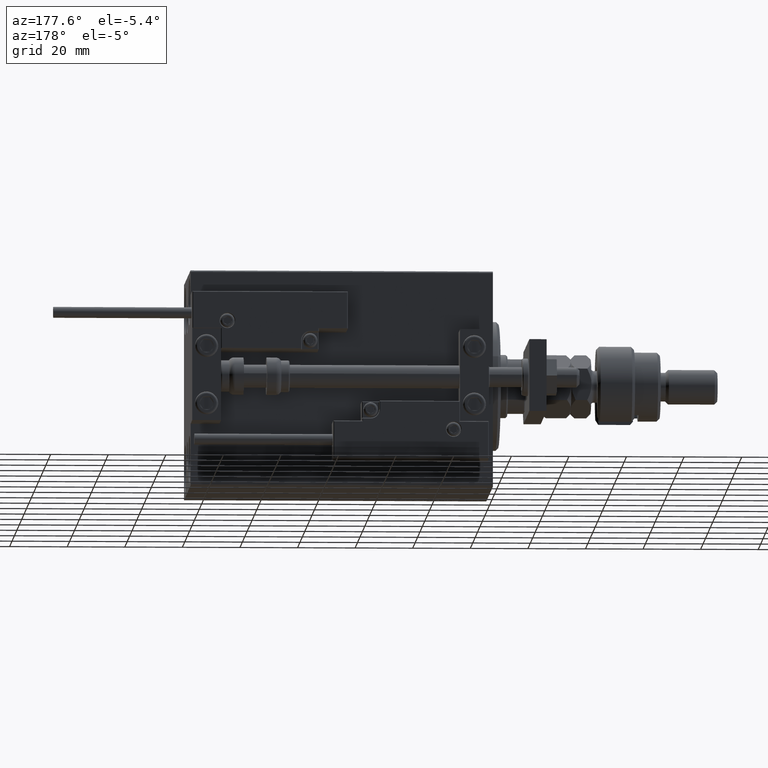
[diagram: clean part render]
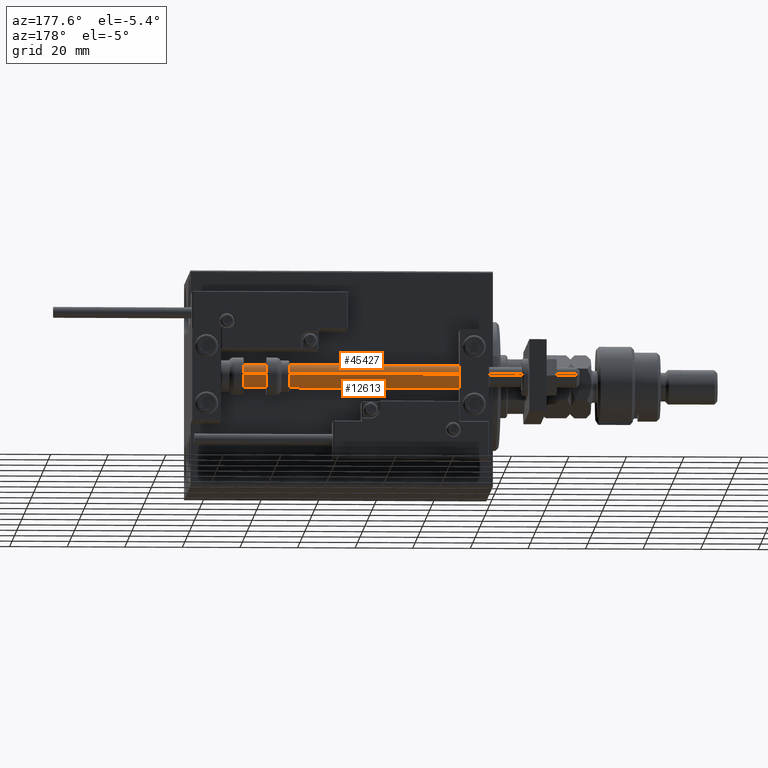
[diagram: same view with one multi-face feature highlighted, each face labeled with its STEP entity id]
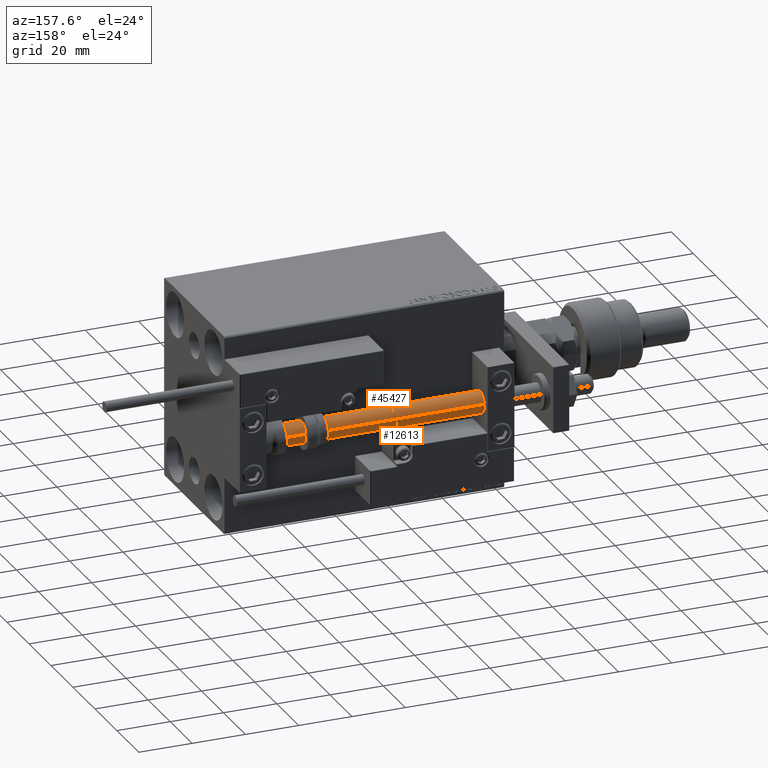
[diagram: same view with one multi-face feature highlighted, each face labeled with its STEP entity id]
A machine part, auxiliary view. The highlighted faces form ONE feature: a constant-radius fillet chain: 2 tangent blend faces with common blend radius 4 mm. The faces share edges in the B-rep.
A second angle (auxiliary view) of the same feature is appended — it is thin or edge-on in the first view.
Their STEP definitions:
[1] entity #45427 (Cylinder):
#1222 = CARTESIAN_POINT ( 'NONE',  ( 0.000000000000000000, 0.000000000000000000, 105.0000000000000000 ) ) ;
#1766 = VERTEX_POINT ( 'NONE', #25635 ) ;
#4138 = ORIENTED_EDGE ( 'NONE', *, *, #35335, .F. ) ;
#5382 = EDGE_CURVE ( 'NONE', #49031, #28472, #25627, .T. ) ;
#5959 = CARTESIAN_POINT ( 'NONE',  ( 4.000000000000000000, 4.898587196589412829E-16, 105.0000000000000000 ) ) ;
#6175 = CARTESIAN_POINT ( 'NONE',  ( 4.000000000000000000, 4.898587196589412829E-16, 105.0000000000000000 ) ) ;
#6942 = DIRECTION ( 'NONE',  ( 1.000000000000000000, 0.000000000000000000, 0.000000000000000000 ) ) ;
#8678 = DIRECTION ( 'NONE',  ( -1.000000000000000000, 0.000000000000000000, 0.000000000000000000 ) ) ;
#12653 = EDGE_CURVE ( 'NONE', #1766, #34781, #20235, .T. ) ;
#12928 = FACE_OUTER_BOUND ( 'NONE', #34916, .T. ) ;
#13975 = DIRECTION ( 'NONE',  ( -0.000000000000000000, -0.000000000000000000, -1.000000000000000000 ) ) ;
#14793 = ORIENTED_EDGE ( 'NONE', *, *, #12653, .F. ) ;
#17434 = ORIENTED_EDGE ( 'NONE', *, *, #38388, .T. ) ;
#17476 = DIRECTION ( 'NONE',  ( 0.000000000000000000, 0.000000000000000000, 1.000000000000000000 ) ) ;
#20235 = LINE ( 'NONE', #25264, #41514 ) ;
#21694 = ORIENTED_EDGE ( 'NONE', *, *, #5382, .T. ) ;
#23599 = AXIS2_PLACEMENT_3D ( 'NONE', #41426, #13975, #8678 ) ;
#24288 = AXIS2_PLACEMENT_3D ( 'NONE', #52273, #27176, #6942 ) ;
#25002 = AXIS2_PLACEMENT_3D ( 'NONE', #1222, #17476, #29719 ) ;
#25172 = CYLINDRICAL_SURFACE ( 'NONE', #23599, 4.000000000000000000 ) ;
#25264 = CARTESIAN_POINT ( 'NONE',  ( -4.000000000000000000, 0.000000000000000000, 105.0000000000000000 ) ) ;
#25627 = LINE ( 'NONE', #6175, #42086 ) ;
#25635 = CARTESIAN_POINT ( 'NONE',  ( -4.000000000000000000, 0.000000000000000000, 105.0000000000000000 ) ) ;
#27176 = DIRECTION ( 'NONE',  ( -0.000000000000000000, -0.000000000000000000, 1.000000000000000000 ) ) ;
#28472 = VERTEX_POINT ( 'NONE', #30124 ) ;
#29719 = DIRECTION ( 'NONE',  ( 1.000000000000000000, 0.000000000000000000, 0.000000000000000000 ) ) ;
#30124 = CARTESIAN_POINT ( 'NONE',  ( 4.000000000000000000, 4.898587196589412829E-16, 2.000000000000029310 ) ) ;
#34781 = VERTEX_POINT ( 'NONE', #45291 ) ;
#34916 = EDGE_LOOP ( 'NONE', ( #4138, #21694, #17434, #14793 ) ) ;
#35335 = EDGE_CURVE ( 'NONE', #49031, #1766, #48004, .T. ) ;
#38388 = EDGE_CURVE ( 'NONE', #28472, #34781, #43835, .T. ) ;
#41426 = CARTESIAN_POINT ( 'NONE',  ( 0.000000000000000000, 0.000000000000000000, 105.0000000000000000 ) ) ;
#41514 = VECTOR ( 'NONE', #41518, 1000.000000000000000 ) ;
#41518 = DIRECTION ( 'NONE',  ( -0.000000000000000000, -0.000000000000000000, -1.000000000000000000 ) ) ;
#42086 = VECTOR ( 'NONE', #50166, 1000.000000000000000 ) ;
#43835 = CIRCLE ( 'NONE', #24288, 4.000000000000000000 ) ;
#45291 = CARTESIAN_POINT ( 'NONE',  ( -4.000000000000000000, 0.000000000000000000, 2.000000000000029310 ) ) ;
#45427 = ADVANCED_FACE ( 'NONE', ( #12928 ), #25172, .T. ) ;
#48004 = CIRCLE ( 'NONE', #25002, 4.000000000000000000 ) ;
#49031 = VERTEX_POINT ( 'NONE', #5959 ) ;
#50166 = DIRECTION ( 'NONE',  ( -0.000000000000000000, -0.000000000000000000, -1.000000000000000000 ) ) ;
#52273 = CARTESIAN_POINT ( 'NONE',  ( 0.000000000000000000, 0.000000000000000000, 2.000000000000029310 ) ) ;
[2] entity #12613 (Cylinder):
#1021 = DIRECTION ( 'NONE',  ( -0.000000000000000000, -0.000000000000000000, -1.000000000000000000 ) ) ;
#1766 = VERTEX_POINT ( 'NONE', #25635 ) ;
#3751 = CIRCLE ( 'NONE', #40327, 4.000000000000000000 ) ;
#4763 = CARTESIAN_POINT ( 'NONE',  ( 0.000000000000000000, 0.000000000000000000, 105.0000000000000000 ) ) ;
#4774 = DIRECTION ( 'NONE',  ( 0.000000000000000000, 0.000000000000000000, 1.000000000000000000 ) ) ;
#5148 = AXIS2_PLACEMENT_3D ( 'NONE', #31615, #34557, #42823 ) ;
#5382 = EDGE_CURVE ( 'NONE', #49031, #28472, #25627, .T. ) ;
#5959 = CARTESIAN_POINT ( 'NONE',  ( 4.000000000000000000, 4.898587196589412829E-16, 105.0000000000000000 ) ) ;
#6175 = CARTESIAN_POINT ( 'NONE',  ( 4.000000000000000000, 4.898587196589412829E-16, 105.0000000000000000 ) ) ;
#9814 = ORIENTED_EDGE ( 'NONE', *, *, #5382, .F. ) ;
#12613 = ADVANCED_FACE ( 'NONE', ( #12763 ), #41261, .T. ) ;
#12653 = EDGE_CURVE ( 'NONE', #1766, #34781, #20235, .T. ) ;
#12763 = FACE_OUTER_BOUND ( 'NONE', #35863, .T. ) ;
#15250 = ORIENTED_EDGE ( 'NONE', *, *, #23796, .T. ) ;
#20235 = LINE ( 'NONE', #25264, #41514 ) ;
#20869 = ORIENTED_EDGE ( 'NONE', *, *, #12653, .T. ) ;
#21021 = DIRECTION ( 'NONE',  ( -1.000000000000000000, 0.000000000000000000, 0.000000000000000000 ) ) ;
#21030 = CARTESIAN_POINT ( 'NONE',  ( 0.000000000000000000, 0.000000000000000000, 105.0000000000000000 ) ) ;
#23796 = EDGE_CURVE ( 'NONE', #34781, #28472, #45978, .T. ) ;
#25263 = ORIENTED_EDGE ( 'NONE', *, *, #34992, .F. ) ;
#25264 = CARTESIAN_POINT ( 'NONE',  ( -4.000000000000000000, 0.000000000000000000, 105.0000000000000000 ) ) ;
#25627 = LINE ( 'NONE', #6175, #42086 ) ;
#25635 = CARTESIAN_POINT ( 'NONE',  ( -4.000000000000000000, 0.000000000000000000, 105.0000000000000000 ) ) ;
#28472 = VERTEX_POINT ( 'NONE', #30124 ) ;
#29265 = DIRECTION ( 'NONE',  ( 1.000000000000000000, 0.000000000000000000, 0.000000000000000000 ) ) ;
#30124 = CARTESIAN_POINT ( 'NONE',  ( 4.000000000000000000, 4.898587196589412829E-16, 2.000000000000029310 ) ) ;
#31615 = CARTESIAN_POINT ( 'NONE',  ( 0.000000000000000000, 0.000000000000000000, 2.000000000000029310 ) ) ;
#34557 = DIRECTION ( 'NONE',  ( -0.000000000000000000, -0.000000000000000000, 1.000000000000000000 ) ) ;
#34781 = VERTEX_POINT ( 'NONE', #45291 ) ;
#34992 = EDGE_CURVE ( 'NONE', #1766, #49031, #3751, .T. ) ;
#35863 = EDGE_LOOP ( 'NONE', ( #9814, #25263, #20869, #15250 ) ) ;
#40327 = AXIS2_PLACEMENT_3D ( 'NONE', #21030, #4774, #29265 ) ;
#41261 = CYLINDRICAL_SURFACE ( 'NONE', #49210, 4.000000000000000000 ) ;
#41514 = VECTOR ( 'NONE', #41518, 1000.000000000000000 ) ;
#41518 = DIRECTION ( 'NONE',  ( -0.000000000000000000, -0.000000000000000000, -1.000000000000000000 ) ) ;
#42086 = VECTOR ( 'NONE', #50166, 1000.000000000000000 ) ;
#42823 = DIRECTION ( 'NONE',  ( 1.000000000000000000, 0.000000000000000000, 0.000000000000000000 ) ) ;
#45291 = CARTESIAN_POINT ( 'NONE',  ( -4.000000000000000000, 0.000000000000000000, 2.000000000000029310 ) ) ;
#45978 = CIRCLE ( 'NONE', #5148, 4.000000000000000000 ) ;
#49031 = VERTEX_POINT ( 'NONE', #5959 ) ;
#49210 = AXIS2_PLACEMENT_3D ( 'NONE', #4763, #1021, #21021 ) ;
#50166 = DIRECTION ( 'NONE',  ( -0.000000000000000000, -0.000000000000000000, -1.000000000000000000 ) ) ;